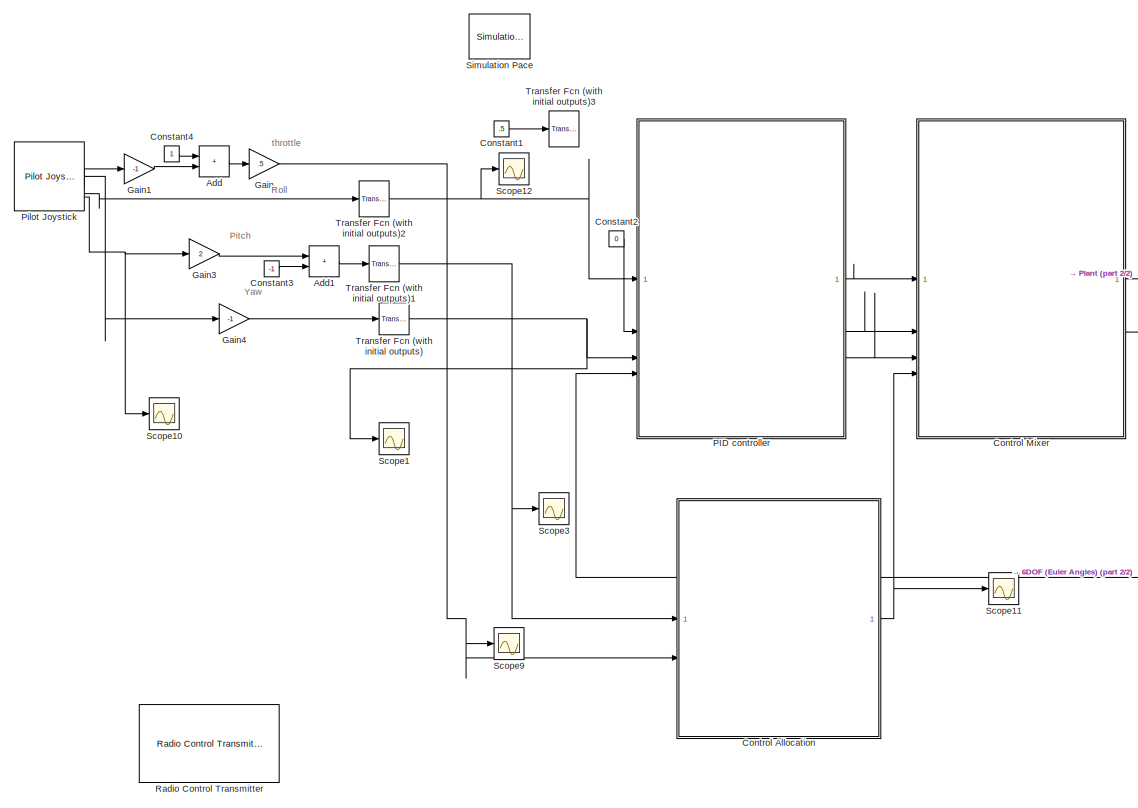
[diagram: root canvas - part 1/2, left side, full height]
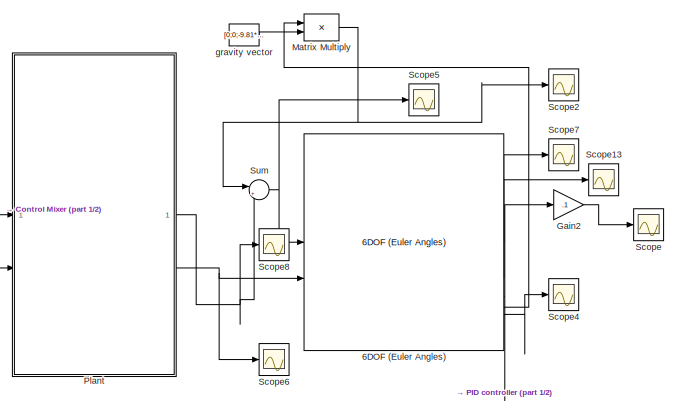
[diagram: root canvas - part 2/2, middle right region]
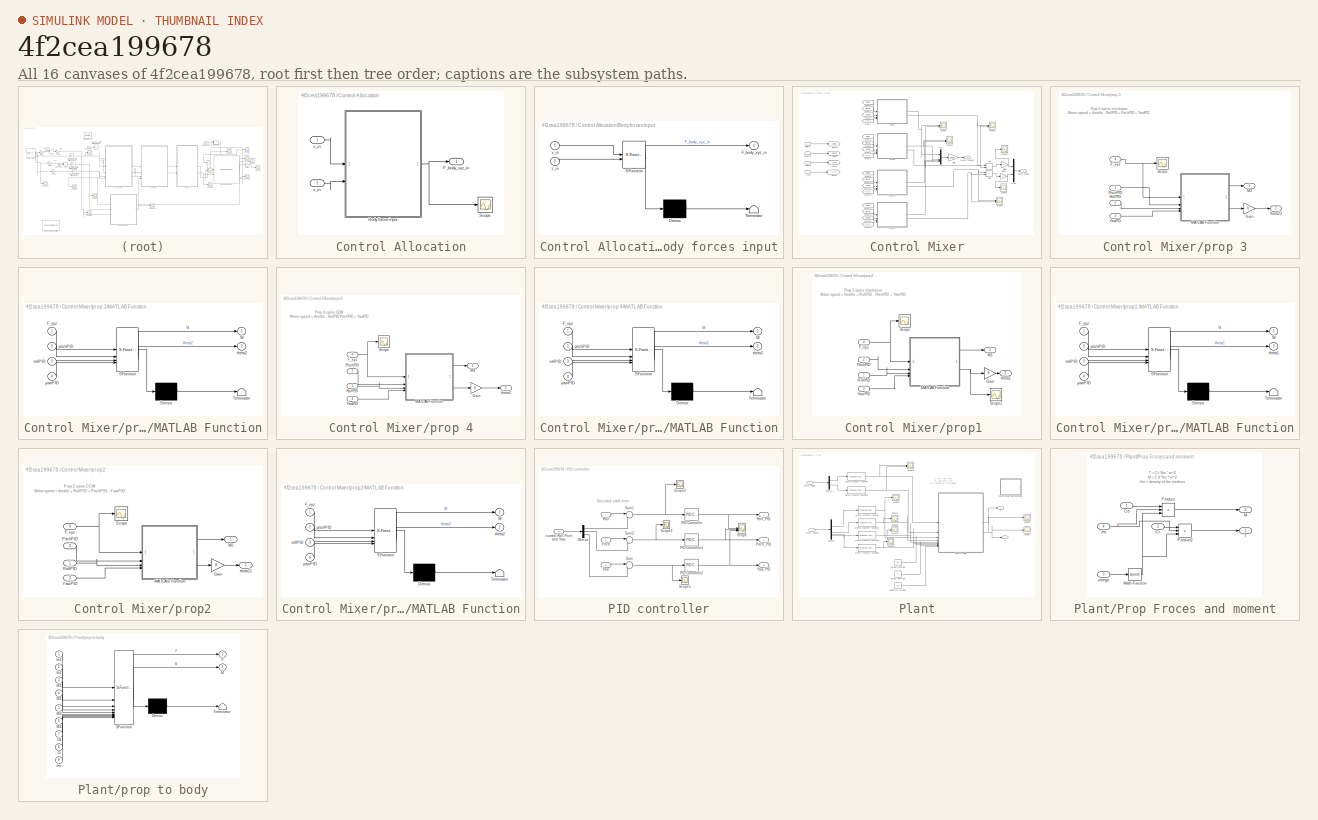
[diagram: thumbnail index - all 16 canvases of the model, root first then tree order]
MODEL slx_4f2cea199678
KIND model
CONFIG AbsTol = auto
CONFIG EnableMultiTasking = off
CONFIG FixedStep = 1/3000
CONFIG MaxStep = auto
CONFIG MinStep = auto
CONFIG RelTol = 1e-3
CONFIG SampleTimeConstraint = Unconstrained
CONFIG SolverName = FixedStepAuto
CONFIG StartTime = 0.0
CONFIG StopTime = 40
WORKSPACE source: mxarray member
WORKSPACE Cd = 1.63886804e-09
WORKSPACE Ct = 6.43091818e-08
WORKSPACE Ixx = 113600
WORKSPACE Iyy = 113600
WORKSPACE Izz = 22620
WORKSPACE Lx = 0.133
WORKSPACE Ly = 0.1575
WORKSPACE Lz = 0.0132
WORKSPACE h = 0.05
WORKSPACE rho = 1.225
BLOCK [Reference] 6DOF (Euler Angles)  REF=shared6dof/6DOF (Euler Angles)
  LibrarySourceBlock = aerolib6dof2/6DOF (Euler Angles)
  SourceBlock = shared6dof/6DOF (Euler Angles)
  SourceType = 6DOF EoM (Body Axis)
BLOCK [Sum] Add
  IconShape = rectangular
BLOCK [Sum] Add1
  IconShape = rectangular
BLOCK [Constant] Constant1
  Value = .5
BLOCK [Constant] Constant2
  Value = 0
BLOCK [Constant] Constant3
  Value = -1
BLOCK [Constant] Constant4
BLOCK [SubSystem] Control Allocation
BLOCK [SubSystem] Control Allocation/Body forces input
  ErrorFcn = Stateflow.Translate.translate
  LibrarySourceBlock = simulink/User-Defined\nFunctions/MATLAB Function
  PermitHierarchicalResolution = ExplicitOnly
  SFBlockType = MATLAB Function
  TreatAsAtomicUnit = on
BLOCK [Demux] Control Allocation/Body forces input/ Demux 
  Outputs = 1
BLOCK [S-Function] Control Allocation/Body forces input/ SFunction 
  EnableBusSupport = on
  FunctionName = sf_sfun
  PortCounts = [2 2]
  SFcnIsStateOwnerBlock = off
  SFunctionDeploymentMode = off
  Tag = Stateflow S-Function 2
BLOCK [Terminator] Control Allocation/Body forces input/ Terminator 
BLOCK [Outport] Control Allocation/Body forces input/F_body_xyz_in
BLOCK [Inport] Control Allocation/Body forces input/x_in
BLOCK [Inport] Control Allocation/Body forces input/z_in
  Port = 2
BLOCK [Outport] Control Allocation/F_body_xyz_in
BLOCK [Scope] Control Allocation/Scope
  Floating = off
  NumInputPorts = 1
  ScopeSpecificationString = Simulink.scopes.TimeScopeBlockCfg('CurrentConfiguration', extmgr.ConfigurationSet(extmgr.Configuration('Core','General UI',true),extmgr.Configuration('Core','Source UI',true),extmgr.Configuration('Sources','WiredSimulink',true,'DataLoggingVariableName','ScopeData7'),extmgr.Configuration('Visuals','Time Domain',true,'SerializedDisplays',{struct('MinYLimReal','-0.06543','MaxYLimReal','0.58886','YLab...<+1606ch>
BLOCK [Inport] Control Allocation/x_in
BLOCK [Inport] Control Allocation/z_in
  Port = 2
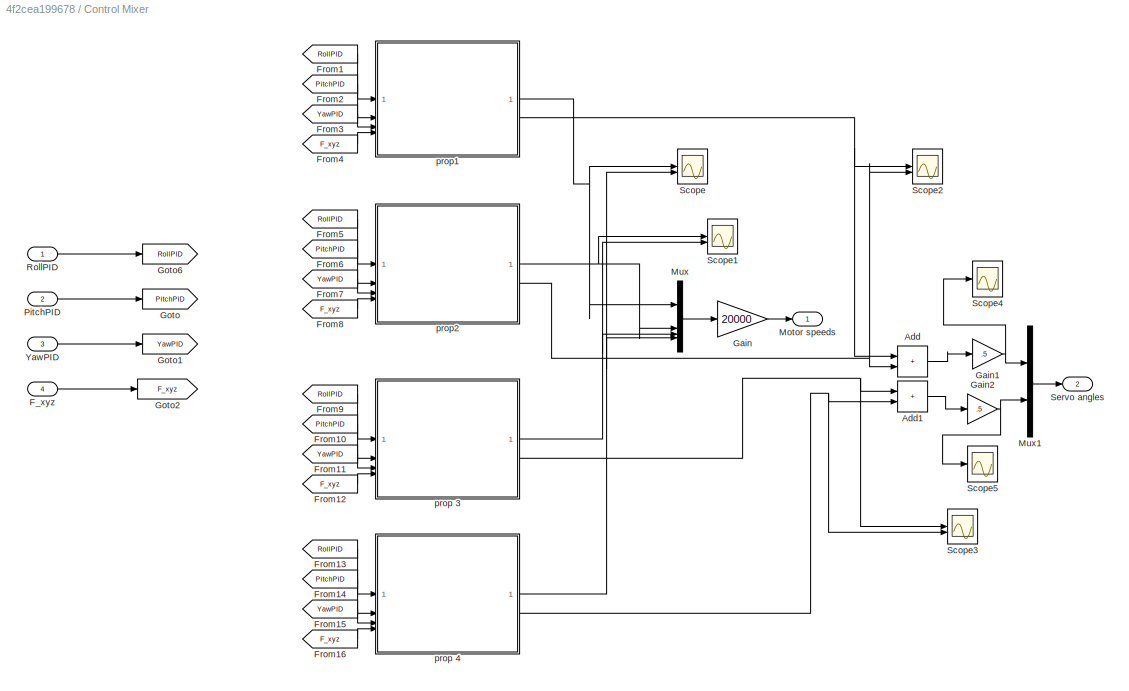
BLOCK [SubSystem] Control Mixer
BLOCK [Sum] Control Mixer/Add
  IconShape = rectangular
BLOCK [Sum] Control Mixer/Add1
  IconShape = rectangular
BLOCK [Inport] Control Mixer/F_xyz
  Port = 4
BLOCK [From] Control Mixer/From1
  GotoTag = RollPID
BLOCK [From] Control Mixer/From10
  GotoTag = PitchPID
BLOCK [From] Control Mixer/From11
  GotoTag = YawPID
BLOCK [From] Control Mixer/From12
  GotoTag = F_xyz
BLOCK [From] Control Mixer/From13
  GotoTag = RollPID
BLOCK [From] Control Mixer/From14
  GotoTag = PitchPID
BLOCK [From] Control Mixer/From15
  GotoTag = YawPID
BLOCK [From] Control Mixer/From16
  GotoTag = F_xyz
BLOCK [From] Control Mixer/From2
  GotoTag = PitchPID
BLOCK [From] Control Mixer/From3
  GotoTag = YawPID
BLOCK [From] Control Mixer/From4
  GotoTag = F_xyz
BLOCK [From] Control Mixer/From5
  GotoTag = RollPID
BLOCK [From] Control Mixer/From6
  GotoTag = PitchPID
BLOCK [From] Control Mixer/From7
  GotoTag = YawPID
BLOCK [From] Control Mixer/From8
  GotoTag = F_xyz
BLOCK [From] Control Mixer/From9
  GotoTag = RollPID
BLOCK [Gain] Control Mixer/Gain
  Gain = 20000
BLOCK [Gain] Control Mixer/Gain1
  Gain = .5
BLOCK [Gain] Control Mixer/Gain2
  Gain = .5
BLOCK [Goto] Control Mixer/Goto
  GotoTag = PitchPID
BLOCK [Goto] Control Mixer/Goto1
  GotoTag = YawPID
BLOCK [Goto] Control Mixer/Goto2
  GotoTag = F_xyz
BLOCK [Goto] Control Mixer/Goto6
  GotoTag = RollPID
BLOCK [Outport] Control Mixer/Motor speeds
BLOCK [Mux] Control Mixer/Mux
  DisplayOption = bar
BLOCK [Mux] Control Mixer/Mux1
  DisplayOption = bar
  Inputs = 2
BLOCK [Inport] Control Mixer/PitchPID
  Port = 2
BLOCK [Inport] Control Mixer/RollPID
BLOCK [Scope] Control Mixer/Scope
  Floating = off
  NumInputPorts = 2
  ScopeSpecificationString = Simulink.scopes.TimeScopeBlockCfg('CurrentConfiguration', extmgr.ConfigurationSet(extmgr.Configuration('Core','General UI',true),extmgr.Configuration('Core','Source UI',true),extmgr.Configuration('Sources','WiredSimulink',true,'DataLoggingVariableName','ScopeData2'),extmgr.Configuration('Visuals','Time Domain',true,'SerializedDisplays',{struct('MinYLimReal','0.37866','MaxYLimReal','1.23717','YLabe...<+1505ch>
BLOCK [Scope] Control Mixer/Scope1
  Floating = off
  NumInputPorts = 2
  ScopeSpecificationString = Simulink.scopes.TimeScopeBlockCfg('CurrentConfiguration', extmgr.ConfigurationSet(extmgr.Configuration('Core','General UI',true),extmgr.Configuration('Core','Source UI',true),extmgr.Configuration('Sources','WiredSimulink',true,'DataLoggingVariableName','ScopeData3'),extmgr.Configuration('Visuals','Time Domain',true,'SerializedDisplays',{struct('MinYLimReal','-26.05432','MaxYLimReal','235.23226','Y...<+1505ch>
BLOCK [Scope] Control Mixer/Scope2
  Floating = off
  NumInputPorts = 2
  ScopeSpecificationString = Simulink.scopes.TimeScopeBlockCfg('CurrentConfiguration', extmgr.ConfigurationSet(extmgr.Configuration('Core','General UI',true),extmgr.Configuration('Core','Source UI',true),extmgr.Configuration('Sources','WiredSimulink',true,'DataLoggingVariableName','ScopeData2'),extmgr.Configuration('Visuals','Time Domain',true,'SerializedDisplays',{struct('MinYLimReal','-0.76353','MaxYLimReal','6.87174','YLab...<+1551ch>
BLOCK [Scope] Control Mixer/Scope3
  Floating = off
  NumInputPorts = 2
  ScopeSpecificationString = Simulink.scopes.TimeScopeBlockCfg('CurrentConfiguration', extmgr.ConfigurationSet(extmgr.Configuration('Core','General UI',true),extmgr.Configuration('Core','Source UI',true),extmgr.Configuration('Sources','WiredSimulink',true,'DataLoggingVariableName','ScopeData3'),extmgr.Configuration('Visuals','Time Domain',true,'SerializedDisplays',{struct('MinYLimReal','-0.76355','MaxYLimReal','6.87198','YLab...<+1496ch>
BLOCK [Scope] Control Mixer/Scope4
  Floating = off
  NumInputPorts = 1
  ScopeSpecificationString = Simulink.scopes.TimeScopeBlockCfg('CurrentConfiguration', extmgr.ConfigurationSet(extmgr.Configuration('Core','General UI',true),extmgr.Configuration('Core','Source UI',true),extmgr.Configuration('Sources','WiredSimulink',true,'DataLoggingVariableName','ScopeData9'),extmgr.Configuration('Visuals','Time Domain',true,'SerializedDisplays',{struct('MinYLimReal','-0.76353','MaxYLimReal','6.87174','YLab...<+1495ch>
BLOCK [Scope] Control Mixer/Scope5
  Floating = off
  NumInputPorts = 1
  ScopeSpecificationString = Simulink.scopes.TimeScopeBlockCfg('CurrentConfiguration', extmgr.ConfigurationSet(extmgr.Configuration('Core','General UI',true),extmgr.Configuration('Core','Source UI',true),extmgr.Configuration('Sources','WiredSimulink',true,'DataLoggingVariableName','ScopeData10'),extmgr.Configuration('Visuals','Time Domain',true,'SerializedDisplays',{struct('MinYLimReal','-0.76353','MaxYLimReal','6.87174','YLa...<+1522ch>
BLOCK [Outport] Control Mixer/Servo angles
  Port = 2
BLOCK [Inport] Control Mixer/YawPID
  Port = 3
BLOCK [SubSystem] Control Mixer/prop 3
BLOCK [Inport] Control Mixer/prop 3/F_xyz
  Port = 4
BLOCK [Gain] Control Mixer/prop 3/Gain
BLOCK [Outport] Control Mixer/prop 3/M3
BLOCK [SubSystem] Control Mixer/prop 3/MATLAB Function
  ErrorFcn = Stateflow.Translate.translate
  PermitHierarchicalResolution = ExplicitOnly
  SFBlockType = MATLAB Function
  TreatAsAtomicUnit = on
BLOCK [Demux] Control Mixer/prop 3/MATLAB Function/ Demux 
  Outputs = 1
BLOCK [S-Function] Control Mixer/prop 3/MATLAB Function/ SFunction 
  EnableBusSupport = on
  FunctionName = sf_sfun
  PortCounts = [4 3]
  SFcnIsStateOwnerBlock = off
  SFunctionDeploymentMode = off
  Tag = Stateflow S-Function 6
BLOCK [Terminator] Control Mixer/prop 3/MATLAB Function/ Terminator 
BLOCK [Inport] Control Mixer/prop 3/MATLAB Function/F_xyz
BLOCK [Outport] Control Mixer/prop 3/MATLAB Function/M
BLOCK [Inport] Control Mixer/prop 3/MATLAB Function/pitchPID
  Port = 2
BLOCK [Inport] Control Mixer/prop 3/MATLAB Function/rollPID
  Port = 3
BLOCK [Outport] Control Mixer/prop 3/MATLAB Function/theta2
  Port = 2
BLOCK [Inport] Control Mixer/prop 3/MATLAB Function/yawPID
  Port = 4
BLOCK [Inport] Control Mixer/prop 3/PitchPID
  Port = 2
BLOCK [Inport] Control Mixer/prop 3/RollPID
BLOCK [Scope] Control Mixer/prop 3/Scope
  Floating = off
  NumInputPorts = 1
  ScopeSpecificationString = Simulink.scopes.TimeScopeBlockCfg('CurrentConfiguration', extmgr.ConfigurationSet(extmgr.Configuration('Core','General UI',true),extmgr.Configuration('Core','Source UI',true),extmgr.Configuration('Sources','WiredSimulink',true,'DataLoggingVariableName','ScopeData2'),extmgr.Configuration('Visuals','Time Domain',true,'SerializedDisplays',{struct('MinYLimReal','9000.00000','MaxYLimReal','11000.00000'...<+1428ch>
BLOCK [Inport] Control Mixer/prop 3/YawPID
  Port = 3
BLOCK [Outport] Control Mixer/prop 3/theta22
  Port = 2
BLOCK [SubSystem] Control Mixer/prop 4
BLOCK [Inport] Control Mixer/prop 4/F_xyz
  Port = 4
BLOCK [Gain] Control Mixer/prop 4/Gain
BLOCK [Outport] Control Mixer/prop 4/M4
BLOCK [SubSystem] Control Mixer/prop 4/MATLAB Function
  ErrorFcn = Stateflow.Translate.translate
  PermitHierarchicalResolution = ExplicitOnly
  SFBlockType = MATLAB Function
  TreatAsAtomicUnit = on
BLOCK [Demux] Control Mixer/prop 4/MATLAB Function/ Demux 
  Outputs = 1
BLOCK [S-Function] Control Mixer/prop 4/MATLAB Function/ SFunction 
  EnableBusSupport = on
  FunctionName = sf_sfun
  PortCounts = [4 3]
  SFcnIsStateOwnerBlock = off
  SFunctionDeploymentMode = off
  Tag = Stateflow S-Function 4
BLOCK [Terminator] Control Mixer/prop 4/MATLAB Function/ Terminator 
BLOCK [Inport] Control Mixer/prop 4/MATLAB Function/F_xyz
BLOCK [Outport] Control Mixer/prop 4/MATLAB Function/M
BLOCK [Inport] Control Mixer/prop 4/MATLAB Function/pitchPID
  Port = 2
BLOCK [Inport] Control Mixer/prop 4/MATLAB Function/rollPID
  Port = 3
BLOCK [Outport] Control Mixer/prop 4/MATLAB Function/theta2
  Port = 2
BLOCK [Inport] Control Mixer/prop 4/MATLAB Function/yawPID
  Port = 4
BLOCK [Inport] Control Mixer/prop 4/PitchPID
  Port = 2
BLOCK [Inport] Control Mixer/prop 4/RollPID
BLOCK [Scope] Control Mixer/prop 4/Scope
  Floating = off
  NumInputPorts = 1
  ScopeSpecificationString = Simulink.scopes.TimeScopeBlockCfg('CurrentConfiguration', extmgr.ConfigurationSet(extmgr.Configuration('Core','General UI',true),extmgr.Configuration('Core','Source UI',true),extmgr.Configuration('Sources','WiredSimulink',true,'DataLoggingVariableName','ScopeData3'),extmgr.Configuration('Visuals','Time Domain',true,'SerializedDisplays',{struct('MinYLimReal','-0.06543','MaxYLimReal','0.58886','YLab...<+1510ch>
BLOCK [Inport] Control Mixer/prop 4/YawPID
  Port = 3
BLOCK [Outport] Control Mixer/prop 4/theta2
  Port = 2
BLOCK [SubSystem] Control Mixer/prop1 
BLOCK [Inport] Control Mixer/prop1 /F_xyz
  Port = 4
BLOCK [Gain] Control Mixer/prop1 /Gain
BLOCK [Outport] Control Mixer/prop1 /M1
BLOCK [SubSystem] Control Mixer/prop1 /MATLAB Function
  ErrorFcn = Stateflow.Translate.translate
  PermitHierarchicalResolution = ExplicitOnly
  SFBlockType = MATLAB Function
  TreatAsAtomicUnit = on
BLOCK [Demux] Control Mixer/prop1 /MATLAB Function/ Demux 
  Outputs = 1
BLOCK [S-Function] Control Mixer/prop1 /MATLAB Function/ SFunction 
  EnableBusSupport = on
  FunctionName = sf_sfun
  PortCounts = [4 3]
  SFcnIsStateOwnerBlock = off
  SFunctionDeploymentMode = off
  Tag = Stateflow S-Function 3
BLOCK [Terminator] Control Mixer/prop1 /MATLAB Function/ Terminator 
BLOCK [Inport] Control Mixer/prop1 /MATLAB Function/F_xyz
BLOCK [Outport] Control Mixer/prop1 /MATLAB Function/M
BLOCK [Inport] Control Mixer/prop1 /MATLAB Function/pitchPID
  Port = 2
BLOCK [Inport] Control Mixer/prop1 /MATLAB Function/rollPID
  Port = 3
BLOCK [Outport] Control Mixer/prop1 /MATLAB Function/theta1
  Port = 2
BLOCK [Inport] Control Mixer/prop1 /MATLAB Function/yawPID
  Port = 4
BLOCK [Inport] Control Mixer/prop1 /PitchPID
  Port = 2
BLOCK [Inport] Control Mixer/prop1 /RollPID
BLOCK [Scope] Control Mixer/prop1 /Scope
  Floating = off
  NumInputPorts = 1
  ScopeSpecificationString = Simulink.scopes.TimeScopeBlockCfg('CurrentConfiguration', extmgr.ConfigurationSet(extmgr.Configuration('Core','General UI',true),extmgr.Configuration('Core','Source UI',true),extmgr.Configuration('Sources','WiredSimulink',true,'DataLoggingVariableName','ScopeData8'),extmgr.Configuration('Visuals','Time Domain',true,'SerializedDisplays',{struct('MinYLimReal','-0.06543','MaxYLimReal','0.58886','YLab...<+1680ch>
BLOCK [Scope] Control Mixer/prop1 /Scope1
  Floating = off
  NumInputPorts = 1
  ScopeSpecificationString = Simulink.scopes.TimeScopeBlockCfg('CurrentConfiguration', extmgr.ConfigurationSet(extmgr.Configuration('Core','General UI',true),extmgr.Configuration('Core','Source UI',true),extmgr.Configuration('Sources','WiredSimulink',true,'DataLoggingVariableName','ScopeData14'),extmgr.Configuration('Visuals','Time Domain',true,'SerializedDisplays',{struct('MinYLimReal','-0.7635','MaxYLimReal','6.87154','YLab...<+1496ch>
BLOCK [Inport] Control Mixer/prop1 /YawPID
  Port = 3
BLOCK [Outport] Control Mixer/prop1 /theta1
  Port = 2
BLOCK [SubSystem] Control Mixer/prop2
BLOCK [Inport] Control Mixer/prop2/F_xyz
  Port = 4
BLOCK [Gain] Control Mixer/prop2/Gain
BLOCK [Outport] Control Mixer/prop2/M2
BLOCK [SubSystem] Control Mixer/prop2/MATLAB Function
  ErrorFcn = Stateflow.Translate.translate
  PermitHierarchicalResolution = ExplicitOnly
  SFBlockType = MATLAB Function
  TreatAsAtomicUnit = on
BLOCK [Demux] Control Mixer/prop2/MATLAB Function/ Demux 
  Outputs = 1
BLOCK [S-Function] Control Mixer/prop2/MATLAB Function/ SFunction 
  EnableBusSupport = on
  FunctionName = sf_sfun
  PortCounts = [4 3]
  SFcnIsStateOwnerBlock = off
  SFunctionDeploymentMode = off
  Tag = Stateflow S-Function 5
BLOCK [Terminator] Control Mixer/prop2/MATLAB Function/ Terminator 
BLOCK [Inport] Control Mixer/prop2/MATLAB Function/F_xyz
BLOCK [Outport] Control Mixer/prop2/MATLAB Function/M
BLOCK [Inport] Control Mixer/prop2/MATLAB Function/pitchPID
  Port = 2
BLOCK [Inport] Control Mixer/prop2/MATLAB Function/rollPID
  Port = 3
BLOCK [Outport] Control Mixer/prop2/MATLAB Function/theta2
  Port = 2
BLOCK [Inport] Control Mixer/prop2/MATLAB Function/yawPID
  Port = 4
BLOCK [Inport] Control Mixer/prop2/PitchPID
  Port = 2
BLOCK [Inport] Control Mixer/prop2/RollPID
BLOCK [Scope] Control Mixer/prop2/Scope
  Floating = off
  NumInputPorts = 1
  ScopeSpecificationString = Simulink.scopes.TimeScopeBlockCfg('CurrentConfiguration', extmgr.ConfigurationSet(extmgr.Configuration('Core','General UI',true),extmgr.Configuration('Core','Source UI',true),extmgr.Configuration('Sources','WiredSimulink',true,'DataLoggingVariableName','ScopeData1'),extmgr.Configuration('Visuals','Time Domain',true,'SerializedDisplays',{struct('MinYLimReal','9000.00000','MaxYLimReal','11000.00000'...<+1428ch>
BLOCK [Inport] Control Mixer/prop2/YawPID
  Port = 3
BLOCK [Outport] Control Mixer/prop2/theta11
  Port = 2
BLOCK [Gain] Gain
  Gain = .5
BLOCK [Gain] Gain1
  Gain = -1
BLOCK [Gain] Gain2
  Gain = .1
BLOCK [Gain] Gain3
  Gain = 2
BLOCK [Gain] Gain4
  Gain = -1
BLOCK [Product] Matrix Multiply
  Multiplication = Matrix(*)
BLOCK [SubSystem] PID controller
BLOCK [Demux] PID controller/Demux
  Outputs = 3
BLOCK [Reference] PID controller/PID Controller  REF=slpidlib/PID Controller
  LibrarySourceBlock = simulink/Continuous/PID Controller
  SourceBlock = slpidlib/PID Controller
  SourceType = PID 1dof
BLOCK [Reference] PID controller/PID Controller1  REF=slpidlib/PID Controller
  LibrarySourceBlock = simulink/Continuous/PID Controller
  SourceBlock = slpidlib/PID Controller
  SourceType = PID 1dof
BLOCK [Reference] PID controller/PID Controller2  REF=slpidlib/PID Controller
  LibrarySourceBlock = simulink/Continuous/PID Controller
  SourceBlock = slpidlib/PID Controller
  SourceType = PID 1dof
BLOCK [Inport] PID controller/Pitch
  Port = 2
BLOCK [Outport] PID controller/Pitch_PID
  Port = 2
BLOCK [Inport] PID controller/Roll
BLOCK [Outport] PID controller/Roll_PID
BLOCK [Scope] PID controller/Scope
  Floating = off
  NumInputPorts = 3
  ScopeSpecificationString = Simulink.scopes.TimeScopeBlockCfg('CurrentConfiguration', extmgr.ConfigurationSet(extmgr.Configuration('Core','General UI',true),extmgr.Configuration('Core','Source UI',true),extmgr.Configuration('Sources','WiredSimulink',true,'DataLoggingVariableName','ScopeData1'),extmgr.Configuration('Visuals','Time Domain',true,'SerializedDisplays',{struct('MinYLimReal','-0.10895','MaxYLimReal','0.12279','YLab...<+1608ch>
BLOCK [Scope] PID controller/Scope1
  Floating = off
  NumInputPorts = 1
  ScopeSpecificationString = Simulink.scopes.TimeScopeBlockCfg('CurrentConfiguration', extmgr.ConfigurationSet(extmgr.Configuration('Core','General UI',true),extmgr.Configuration('Core','Source UI',true),extmgr.Configuration('Sources','WiredSimulink',true,'DataLoggingVariableName','ScopeData1'),extmgr.Configuration('Visuals','Time Domain',true,'SerializedDisplays',{struct('MinYLimReal','-0.000000000000000019','MaxYLimReal','0...<+1573ch>
BLOCK [Scope] PID controller/Scope2
  Floating = off
  NumInputPorts = 1
  ScopeSpecificationString = Simulink.scopes.TimeScopeBlockCfg('CurrentConfiguration', extmgr.ConfigurationSet(extmgr.Configuration('Core','General UI',true),extmgr.Configuration('Core','Source UI',true),extmgr.Configuration('Sources','WiredSimulink',true,'DataLoggingVariableName','ScopeData6'),extmgr.Configuration('Visuals','Time Domain',true,'SerializedDisplays',{struct('MinYLimReal','-3.87939','MaxYLimReal','5.02853','YLab...<+1547ch>
BLOCK [Scope] PID controller/Scope3
  Floating = off
  NumInputPorts = 1
  ScopeSpecificationString = Simulink.scopes.TimeScopeBlockCfg('CurrentConfiguration', extmgr.ConfigurationSet(extmgr.Configuration('Core','General UI',true),extmgr.Configuration('Core','Source UI',true),extmgr.Configuration('Sources','WiredSimulink',true,'DataLoggingVariableName','ScopeData7'),extmgr.Configuration('Visuals','Time Domain',true,'SerializedDisplays',{struct('MinYLimReal','-0.76478','MaxYLimReal','0.69177','YLab...<+1547ch>
BLOCK [Sum] PID controller/Sum
  Inputs = |+-
BLOCK [Sum] PID controller/Sum1
  Inputs = |+-
BLOCK [Sum] PID controller/Sum2
  Inputs = |+-
BLOCK [Inport] PID controller/Yaw
  Port = 3
BLOCK [Outport] PID controller/Yaw_PID
  Port = 3
BLOCK [Inport] PID controller/current Roll Pitch and Yaw
  Port = 4
BLOCK [Reference] Pilot Joystick  REF=aerolibanimutils/Pilot Joystick
  SourceBlock = aerolibanimutils/Pilot Joystick
  SourceType = PilotJoystick
BLOCK [SubSystem] Plant
BLOCK [Demux] Plant/Demux
BLOCK [Demux] Plant/Demux1
  Outputs = 2
BLOCK [Constant] Plant/Density of medium
  Value = rho
BLOCK [Outport] Plant/F
BLOCK [Outport] Plant/M
  Port = 2
BLOCK [Reference] Plant/Motor Transfer function  REF=simulink_extras/Additional
Linear/Transfer Fcn
(with initial states)
  SourceBlock = simulink_extras/Additional\nLinear/Transfer Fcn\n(with initial states)
  SourceType = Transfer Function with Initial States
BLOCK [Reference] Plant/Motor Transfer function1  REF=simulink_extras/Additional
Linear/Transfer Fcn
(with initial states)
  SourceBlock = simulink_extras/Additional\nLinear/Transfer Fcn\n(with initial states)
  SourceType = Transfer Function with Initial States
BLOCK [Reference] Plant/Motor Transfer function2  REF=simulink_extras/Additional
Linear/Transfer Fcn
(with initial states)
  SourceBlock = simulink_extras/Additional\nLinear/Transfer Fcn\n(with initial states)
  SourceType = Transfer Function with Initial States
BLOCK [Reference] Plant/Motor Transfer function3  REF=simulink_extras/Additional
Linear/Transfer Fcn
(with initial states)
  SourceBlock = simulink_extras/Additional\nLinear/Transfer Fcn\n(with initial states)
  SourceType = Transfer Function with Initial States
BLOCK [Inport] Plant/Motor speeds
BLOCK [SubSystem] Plant/Prop Froces and moment
  Commented = on
BLOCK [Inport] Plant/Prop Froces and moment/Cd
BLOCK [Inport] Plant/Prop Froces and moment/Ct
  Port = 2
BLOCK [Outport] Plant/Prop Froces and moment/M
  Port = 2
BLOCK [Math] Plant/Prop Froces and moment/Math Function
  Operator = square
BLOCK [Product] Plant/Prop Froces and moment/Product
  Inputs = 3
BLOCK [Product] Plant/Prop Froces and moment/Product2
  Inputs = 3
BLOCK [Outport] Plant/Prop Froces and moment/T
BLOCK [Inport] Plant/Prop Froces and moment/omega
  Port = 3
BLOCK [Inport] Plant/Prop Froces and moment/rho
  Port = 4
BLOCK [Scope] Plant/Scope
  Floating = off
  NumInputPorts = 1
  ScopeSpecificationString = Simulink.scopes.TimeScopeBlockCfg('CurrentConfiguration', extmgr.ConfigurationSet(extmgr.Configuration('Core','General UI',true),extmgr.Configuration('Core','Source UI',true),extmgr.Configuration('Sources','WiredSimulink',true,'DataLoggingVariableName','ScopeData4'),extmgr.Configuration('Visuals','Time Domain',true,'SerializedDisplays',{struct('MinYLimReal','-516.35727','MaxYLimReal','293.46209','...<+1543ch>
BLOCK [Scope] Plant/Scope1
  Floating = off
  NumInputPorts = 1
  ScopeSpecificationString = Simulink.scopes.TimeScopeBlockCfg('CurrentConfiguration', extmgr.ConfigurationSet(extmgr.Configuration('Core','General UI',true),extmgr.Configuration('Core','Source UI',true),extmgr.Configuration('Sources','WiredSimulink',true,'DataLoggingVariableName','ScopeData5'),extmgr.Configuration('Visuals','Time Domain',true,'SerializedDisplays',{struct('MinYLimReal','-13.3021','MaxYLimReal','119.71892','YL...<+1510ch>
BLOCK [Scope] Plant/Scope2
  Floating = off
  NumInputPorts = 1
  ScopeSpecificationString = Simulink.scopes.TimeScopeBlockCfg('CurrentConfiguration', extmgr.ConfigurationSet(extmgr.Configuration('Core','General UI',true),extmgr.Configuration('Core','Source UI',true),extmgr.Configuration('Sources','WiredSimulink',true,'DataLoggingVariableName','ScopeData6'),extmgr.Configuration('Visuals','Time Domain',true,'SerializedDisplays',{struct('MinYLimReal','-157906.10246','MaxYLimReal','1421154.9...<+1540ch>
BLOCK [Scope] Plant/Scope3
  Floating = off
  NumInputPorts = 2
  ScopeSpecificationString = Simulink.scopes.TimeScopeBlockCfg('CurrentConfiguration', extmgr.ConfigurationSet(extmgr.Configuration('Core','General UI',true),extmgr.Configuration('Core','Source UI',true),extmgr.Configuration('Sources','WiredSimulink',true,'DataLoggingVariableName','ScopeData1'),extmgr.Configuration('Visuals','Time Domain',true,'SerializedDisplays',{struct('MinYLimReal','-0.43873','MaxYLimReal','3.94858','YLab...<+1525ch>
BLOCK [Scope] Plant/Scope4
  Floating = off
  NumInputPorts = 1
  ScopeSpecificationString = Simulink.scopes.TimeScopeBlockCfg('CurrentConfiguration', extmgr.ConfigurationSet(extmgr.Configuration('Core','General UI',true),extmgr.Configuration('Core','Source UI',true),extmgr.Configuration('Sources','WiredSimulink',true,'DataLoggingVariableName','ScopeData11'),extmgr.Configuration('Visuals','Time Domain',true,'SerializedDisplays',{struct('MinYLimReal','-156451.85455','MaxYLimReal','1408066....<+1542ch>
BLOCK [Scope] Plant/Scope5
  Floating = off
  NumInputPorts = 1
  ScopeSpecificationString = Simulink.scopes.TimeScopeBlockCfg('CurrentConfiguration', extmgr.ConfigurationSet(extmgr.Configuration('Core','General UI',true),extmgr.Configuration('Core','Source UI',true),extmgr.Configuration('Sources','WiredSimulink',true,'DataLoggingVariableName','ScopeData12'),extmgr.Configuration('Visuals','Time Domain',true,'SerializedDisplays',{struct('MinYLimReal','-157567.02067','MaxYLimReal','1418103....<+1542ch>
BLOCK [Scope] Plant/Scope6
  Floating = off
  NumInputPorts = 1
  ScopeSpecificationString = Simulink.scopes.TimeScopeBlockCfg('CurrentConfiguration', extmgr.ConfigurationSet(extmgr.Configuration('Core','General UI',true),extmgr.Configuration('Core','Source UI',true),extmgr.Configuration('Sources','WiredSimulink',true,'DataLoggingVariableName','ScopeData13'),extmgr.Configuration('Visuals','Time Domain',true,'SerializedDisplays',{struct('MinYLimReal','-156223.62873','MaxYLimReal','1406012....<+1538ch>
BLOCK [Inport] Plant/Servo angles
  Port = 2
BLOCK [Reference] Plant/Servo transfer function  REF=simulink_extras/Additional
Linear/Transfer Fcn
(with initial states)
  SourceBlock = simulink_extras/Additional\nLinear/Transfer Fcn\n(with initial states)
  SourceType = Transfer Function with Initial States
BLOCK [Reference] Plant/Servo transfer function1  REF=simulink_extras/Additional
Linear/Transfer Fcn
(with initial states)
  SourceBlock = simulink_extras/Additional\nLinear/Transfer Fcn\n(with initial states)
  SourceType = Transfer Function with Initial States
BLOCK [Constant] Plant/Thrust constant
  Value = Ct
BLOCK [Constant] Plant/Torque constant
  Value = Cd
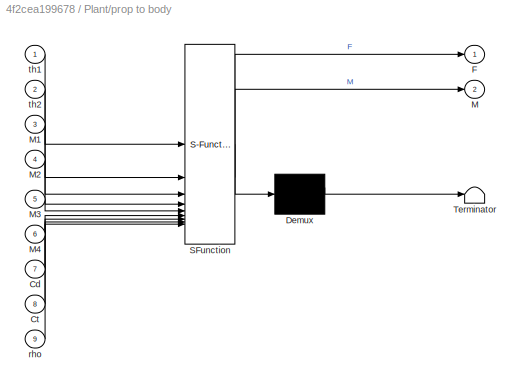
BLOCK [SubSystem] Plant/prop to body
  ErrorFcn = Stateflow.Translate.translate
  LibrarySourceBlock = simulink/User-Defined\nFunctions/MATLAB Function
  PermitHierarchicalResolution = ExplicitOnly
  SFBlockType = MATLAB Function
  TreatAsAtomicUnit = on
BLOCK [Demux] Plant/prop to body/ Demux 
  Outputs = 1
BLOCK [S-Function] Plant/prop to body/ SFunction 
  EnableBusSupport = on
  FunctionName = sf_sfun
  PortCounts = [9 3]
  SFcnIsStateOwnerBlock = off
  SFunctionDeploymentMode = off
  Tag = Stateflow S-Function 1
BLOCK [Terminator] Plant/prop to body/ Terminator 
BLOCK [Inport] Plant/prop to body/Cd
  Port = 7
BLOCK [Inport] Plant/prop to body/Ct
  Port = 8
BLOCK [Outport] Plant/prop to body/F
BLOCK [Outport] Plant/prop to body/M
  Port = 2
BLOCK [Inport] Plant/prop to body/M1
  Port = 3
BLOCK [Inport] Plant/prop to body/M2
  Port = 4
BLOCK [Inport] Plant/prop to body/M3
  Port = 5
BLOCK [Inport] Plant/prop to body/M4
  Port = 6
BLOCK [Inport] Plant/prop to body/rho
  Port = 9
BLOCK [Inport] Plant/prop to body/th1
BLOCK [Inport] Plant/prop to body/th2
  Port = 2
BLOCK [Reference] Radio Control Transmitter  REF=px4Sensorslib/Radio Control Transmitter
  Commented = on
  SourceBlock = px4Sensorslib/Radio Control Transmitter
  SourceType = PX4 Radio Control Transmitter
BLOCK [Scope] Scope
  Floating = off
  NumInputPorts = 1
  ScopeSpecificationString = Simulink.scopes.TimeScopeBlockCfg('CurrentConfiguration', extmgr.ConfigurationSet(extmgr.Configuration('Core','General UI',true),extmgr.Configuration('Core','Source UI',true),extmgr.Configuration('Sources','WiredSimulink',true,'DataLoggingVariableName','ScopeData5'),extmgr.Configuration('Visuals','Time Domain',true,'SerializedDisplays',{struct('MinYLimReal','-0.32908','MaxYLimReal','0.35557','YLab...<+1633ch>
BLOCK [Scope] Scope1
  Floating = off
  NumInputPorts = 1
  ScopeSpecificationString = Simulink.scopes.TimeScopeBlockCfg('CurrentConfiguration', extmgr.ConfigurationSet(extmgr.Configuration('Core','General UI',true),extmgr.Configuration('Core','Source UI',true),extmgr.Configuration('Sources','WiredSimulink',true,'DataLoggingVariableName','ScopeData7'),extmgr.Configuration('Visuals','Time Domain',true,'SerializedDisplays',{struct('MinYLimReal','-1.00000','MaxYLimReal','1.00000','YLab...<+1483ch>
BLOCK [Scope] Scope10
  Floating = off
  NumInputPorts = 1
  ScopeSpecificationString = Simulink.scopes.TimeScopeBlockCfg('CurrentConfiguration', extmgr.ConfigurationSet(extmgr.Configuration('Core','General UI',true),extmgr.Configuration('Core','Source UI',true),extmgr.Configuration('Sources','WiredSimulink',true,'DataLoggingVariableName','ScopeData6'),extmgr.Configuration('Visuals','Time Domain',true,'SerializedDisplays',{struct('MinYLimReal','0.46729','MaxYLimReal','0.79443','YLabe...<+1491ch>
BLOCK [Scope] Scope11
  Floating = off
  NumInputPorts = 1
  ScopeSpecificationString = Simulink.scopes.TimeScopeBlockCfg('CurrentConfiguration', extmgr.ConfigurationSet(extmgr.Configuration('Core','General UI',true),extmgr.Configuration('Core','Source UI',true),extmgr.Configuration('Sources','WiredSimulink',true,'DataLoggingVariableName','ScopeData8'),extmgr.Configuration('Visuals','Time Domain',true,'SerializedDisplays',{struct('MinYLimReal','-0.06543','MaxYLimReal','0.58886','YLab...<+1580ch>
BLOCK [Scope] Scope12
  Floating = off
  NumInputPorts = 1
  ScopeSpecificationString = Simulink.scopes.TimeScopeBlockCfg('CurrentConfiguration', extmgr.ConfigurationSet(extmgr.Configuration('Core','General UI',true),extmgr.Configuration('Core','Source UI',true),extmgr.Configuration('Sources','WiredSimulink',true,'DataLoggingVariableName','ScopeData15'),extmgr.Configuration('Visuals','Time Domain',true,'SerializedDisplays',{struct('MinYLimReal','-0.125','MaxYLimReal','1.125','YLabelR...<+1473ch>
BLOCK [Scope] Scope13
  Floating = off
  NumInputPorts = 1
  ScopeSpecificationString = Simulink.scopes.TimeScopeBlockCfg('CurrentConfiguration', extmgr.ConfigurationSet(extmgr.Configuration('Core','General UI',true),extmgr.Configuration('Core','Source UI',true),extmgr.Configuration('Sources','WiredSimulink',true,'DataLoggingVariableName','ScopeData16'),extmgr.Configuration('Visuals','Time Domain',true,'SerializedDisplays',{struct('MinYLimReal','-471.61545','MaxYLimReal','248.38984',...<+1565ch>
BLOCK [Scope] Scope2
  Floating = off
  NumInputPorts = 1
  ScopeSpecificationString = Simulink.scopes.TimeScopeBlockCfg('CurrentConfiguration', extmgr.ConfigurationSet(extmgr.Configuration('Core','General UI',true),extmgr.Configuration('Core','Source UI',true),extmgr.Configuration('Sources','WiredSimulink',true,'DataLoggingVariableName','ScopeData4'),extmgr.Configuration('Visuals','Time Domain',true,'SerializedDisplays',{struct('MinYLimReal','-32.41081','MaxYLimReal','26.82732','YL...<+1449ch>
BLOCK [Scope] Scope3
  Floating = off
  NumInputPorts = 1
  ScopeSpecificationString = Simulink.scopes.TimeScopeBlockCfg('CurrentConfiguration', extmgr.ConfigurationSet(extmgr.Configuration('Core','General UI',true),extmgr.Configuration('Core','Source UI',true),extmgr.Configuration('Sources','WiredSimulink',true,'DataLoggingVariableName','ScopeData4'),extmgr.Configuration('Visuals','Time Domain',true,'SerializedDisplays',{struct('MinYLimReal','-0.06543','MaxYLimReal','0.58886','YLab...<+1511ch>
BLOCK [Scope] Scope4
  Floating = off
  NumInputPorts = 1
  ScopeSpecificationString = Simulink.scopes.TimeScopeBlockCfg('CurrentConfiguration', extmgr.ConfigurationSet(extmgr.Configuration('Core','General UI',true),extmgr.Configuration('Core','Source UI',true),extmgr.Configuration('Sources','WiredSimulink',true,'DataLoggingVariableName','ScopeData19'),extmgr.Configuration('Visuals','Time Domain',true,'SerializedDisplays',{struct('MinYLimReal','-419.1506','MaxYLimReal','355.21023','...<+1561ch>
BLOCK [Scope] Scope5
  Floating = off
  NumInputPorts = 1
  ScopeSpecificationString = Simulink.scopes.TimeScopeBlockCfg('CurrentConfiguration', extmgr.ConfigurationSet(extmgr.Configuration('Core','General UI',true),extmgr.Configuration('Core','Source UI',true),extmgr.Configuration('Sources','WiredSimulink',true,'DataLoggingVariableName','ScopeData20'),extmgr.Configuration('Visuals','Time Domain',true,'SerializedDisplays',{struct('MinYLimReal','-115.75101','MaxYLimReal','20.95334','...<+1420ch>
BLOCK [Scope] Scope6
  Floating = off
  NumInputPorts = 1
  ScopeSpecificationString = Simulink.scopes.TimeScopeBlockCfg('CurrentConfiguration', extmgr.ConfigurationSet(extmgr.Configuration('Core','General UI',true),extmgr.Configuration('Core','Source UI',true),extmgr.Configuration('Sources','WiredSimulink',true,'DataLoggingVariableName','ScopeData28'),extmgr.Configuration('Visuals','Time Domain',true,'SerializedDisplays',{struct('MinYLimReal','-516.35727','MaxYLimReal','293.46209',...<+1591ch>
BLOCK [Scope] Scope7
  Floating = off
  NumInputPorts = 1
  ScopeSpecificationString = Simulink.scopes.TimeScopeBlockCfg('CurrentConfiguration', extmgr.ConfigurationSet(extmgr.Configuration('Core','General UI',true),extmgr.Configuration('Core','Source UI',true),extmgr.Configuration('Sources','WiredSimulink',true,'DataLoggingVariableName','ScopeData4'),extmgr.Configuration('Visuals','Time Domain',true,'SerializedDisplays',{struct('MinYLimReal','-36.72621','MaxYLimReal','324.84502','Y...<+1669ch>
BLOCK [Scope] Scope8
  Floating = off
  NumInputPorts = 1
  ScopeSpecificationString = Simulink.scopes.TimeScopeBlockCfg('CurrentConfiguration', extmgr.ConfigurationSet(extmgr.Configuration('Core','General UI',true),extmgr.Configuration('Core','Source UI',true),extmgr.Configuration('Sources','WiredSimulink',true,'DataLoggingVariableName','ScopeData10'),extmgr.Configuration('Visuals','Time Domain',true,'SerializedDisplays',{struct('MinYLimReal','-563850.85119','MaxYLimReal','121111.1...<+1611ch>
BLOCK [Scope] Scope9
  Floating = off
  NumInputPorts = 1
  ScopeSpecificationString = Simulink.scopes.TimeScopeBlockCfg('CurrentConfiguration', extmgr.ConfigurationSet(extmgr.Configuration('Core','General UI',true),extmgr.Configuration('Core','Source UI',true),extmgr.Configuration('Sources','WiredSimulink',true,'DataLoggingVariableName','ScopeData5'),extmgr.Configuration('Visuals','Time Domain',true,'SerializedDisplays',{struct('MinYLimReal','0.4','MaxYLimReal','0.6','YLabelReal','...<+1418ch>
BLOCK [Reference] Simulation Pace  REF=aerolibanimutils/Simulation Pace
  AttributesFormatString = %<SleepMode>\n%<SimulationPace> sec/sec
  SourceBlock = aerolibanimutils/Simulation Pace
  SourceType = Simulation Pace
BLOCK [Sum] Sum
  Inputs = |++
BLOCK [Reference] Transfer Fcn (with initial outputs)  REF=simulink_extras/Additional
Linear/Transfer Fcn
(with initial outputs)
  SourceBlock = simulink_extras/Additional\nLinear/Transfer Fcn\n(with initial outputs)
  SourceType = Transfer Function with Initial Outputs
BLOCK [Reference] Transfer Fcn (with initial outputs)1  REF=simulink_extras/Additional
Linear/Transfer Fcn
(with initial outputs)
  SourceBlock = simulink_extras/Additional\nLinear/Transfer Fcn\n(with initial outputs)
  SourceType = Transfer Function with Initial Outputs
BLOCK [Reference] Transfer Fcn (with initial outputs)2  REF=simulink_extras/Additional
Linear/Transfer Fcn
(with initial outputs)
  SourceBlock = simulink_extras/Additional\nLinear/Transfer Fcn\n(with initial outputs)
  SourceType = Transfer Function with Initial Outputs
BLOCK [Reference] Transfer Fcn (with initial outputs)3  REF=simulink_extras/Additional
Linear/Transfer Fcn
(with initial outputs)
  SourceBlock = simulink_extras/Additional\nLinear/Transfer Fcn\n(with initial outputs)
  SourceType = Transfer Function with Initial Outputs
BLOCK [Constant] gravity vector
  Value = [0;0;-9.81*2.7]'
ANNOTATION (root): Pitch
ANNOTATION (root): Roll
ANNOTATION (root): Yaw
ANNOTATION (root): throttle
ANNOTATION Control Mixer/prop 3: Prop 3 spins clockwise Motor speed = throttle - RollPID + PitchPID + YawPID
ANNOTATION Control Mixer/prop 4: Prop 4 spins CCW Motor speed = throttle - RollPID PitchPID + YawPID
ANNOTATION Control Mixer/prop1 : Prop 1 spins clockwise Motor speed = throttle + RollPID - PitchPID + YawPID
ANNOTATION Control Mixer/prop2: Prop 2 spins CCW Motor speed = throttle + RollPID + PitchPID - YawPID
ANNOTATION PID controller: Calculate state error
ANNOTATION Plant: T = Ct *rho * w^2 M = Cd *rho * w^2 rho = density of the medium
ANNOTATION Plant/Prop Froces and moment: T = Ct *rho * w^2 M = Cd *rho * w^2 rho = density of the medium
LINE 6DOF (Euler Angles):1 -> Scope7:1
LINE 6DOF (Euler Angles):2 -> Scope13:1
NET 6DOF (Euler Angles):3 -> Gain2:1, PID controller:4
LINE 6DOF (Euler Angles):4 -> Matrix Multiply:1
LINE 6DOF (Euler Angles):5 -> Scope4:1
LINE Add1:1 -> Transfer Fcn (with initial outputs)1:1
LINE Add:1 -> Gain:1
LINE Constant1:1 -> Transfer Fcn (with initial outputs)3:1
LINE Constant2:1 -> PID controller:2
LINE Constant3:1 -> Add1:2
LINE Constant4:1 -> Add:1
NET Control Allocation/Body forces input:1 -> Control Allocation/F_body_xyz_in:1, Control Allocation/Scope:1
LINE Control Allocation/x_in:1 -> Control Allocation/Body forces input:1
LINE Control Allocation/z_in:1 -> Control Allocation/Body forces input:2
NET Control Allocation:1 -> Control Mixer:4, Scope11:1
LINE Control Mixer/Add1:1 -> Control Mixer/Gain2:1
LINE Control Mixer/Add:1 -> Control Mixer/Gain1:1
LINE Control Mixer/F_xyz:1 -> Control Mixer/Goto2:1
LINE Control Mixer/From10:1 -> Control Mixer/prop 3:2
LINE Control Mixer/From11:1 -> Control Mixer/prop 3:3
LINE Control Mixer/From12:1 -> Control Mixer/prop 3:4
LINE Control Mixer/From13:1 -> Control Mixer/prop 4:1
LINE Control Mixer/From14:1 -> Control Mixer/prop 4:2
LINE Control Mixer/From15:1 -> Control Mixer/prop 4:3
LINE Control Mixer/From16:1 -> Control Mixer/prop 4:4
LINE Control Mixer/From1:1 -> Control Mixer/prop1 :1
LINE Control Mixer/From2:1 -> Control Mixer/prop1 :2
LINE Control Mixer/From3:1 -> Control Mixer/prop1 :3
LINE Control Mixer/From4:1 -> Control Mixer/prop1 :4
LINE Control Mixer/From5:1 -> Control Mixer/prop2:1
LINE Control Mixer/From6:1 -> Control Mixer/prop2:2
LINE Control Mixer/From7:1 -> Control Mixer/prop2:3
LINE Control Mixer/From8:1 -> Control Mixer/prop2:4
LINE Control Mixer/From9:1 -> Control Mixer/prop 3:1
NET Control Mixer/Gain1:1 -> Control Mixer/Mux1:1, Control Mixer/Scope4:1
NET Control Mixer/Gain2:1 -> Control Mixer/Mux1:2, Control Mixer/Scope5:1
LINE Control Mixer/Gain:1 -> Control Mixer/Motor speeds:1
LINE Control Mixer/Mux1:1 -> Control Mixer/Servo angles:1
LINE Control Mixer/Mux:1 -> Control Mixer/Gain:1
LINE Control Mixer/PitchPID:1 -> Control Mixer/Goto:1
LINE Control Mixer/RollPID:1 -> Control Mixer/Goto6:1
LINE Control Mixer/YawPID:1 -> Control Mixer/Goto1:1
NET Control Mixer/prop 3/F_xyz:1 -> Control Mixer/prop 3/MATLAB Function:1, Control Mixer/prop 3/Scope:1
LINE Control Mixer/prop 3/Gain:1 -> Control Mixer/prop 3/theta22:1
LINE Control Mixer/prop 3/MATLAB Function:1 -> Control Mixer/prop 3/M3:1
LINE Control Mixer/prop 3/MATLAB Function:2 -> Control Mixer/prop 3/Gain:1
LINE Control Mixer/prop 3/PitchPID:1 -> Control Mixer/prop 3/MATLAB Function:2
LINE Control Mixer/prop 3/RollPID:1 -> Control Mixer/prop 3/MATLAB Function:3
LINE Control Mixer/prop 3/YawPID:1 -> Control Mixer/prop 3/MATLAB Function:4
NET Control Mixer/prop 3:1 -> Control Mixer/Mux:3, Control Mixer/Scope1:2
NET Control Mixer/prop 3:2 -> Control Mixer/Add1:1, Control Mixer/Scope3:1
NET Control Mixer/prop 4/F_xyz:1 -> Control Mixer/prop 4/MATLAB Function:1, Control Mixer/prop 4/Scope:1
LINE Control Mixer/prop 4/Gain:1 -> Control Mixer/prop 4/theta2:1
LINE Control Mixer/prop 4/MATLAB Function:1 -> Control Mixer/prop 4/M4:1
LINE Control Mixer/prop 4/MATLAB Function:2 -> Control Mixer/prop 4/Gain:1
LINE Control Mixer/prop 4/PitchPID:1 -> Control Mixer/prop 4/MATLAB Function:2
LINE Control Mixer/prop 4/RollPID:1 -> Control Mixer/prop 4/MATLAB Function:3
LINE Control Mixer/prop 4/YawPID:1 -> Control Mixer/prop 4/MATLAB Function:4
NET Control Mixer/prop 4:1 -> Control Mixer/Mux:4, Control Mixer/Scope:2
NET Control Mixer/prop 4:2 -> Control Mixer/Add1:2, Control Mixer/Scope3:2
NET Control Mixer/prop1 /F_xyz:1 -> Control Mixer/prop1 /MATLAB Function:1, Control Mixer/prop1 /Scope:1
LINE Control Mixer/prop1 /Gain:1 -> Control Mixer/prop1 /theta1:1
LINE Control Mixer/prop1 /MATLAB Function:1 -> Control Mixer/prop1 /M1:1
NET Control Mixer/prop1 /MATLAB Function:2 -> Control Mixer/prop1 /Gain:1, Control Mixer/prop1 /Scope1:1
LINE Control Mixer/prop1 /PitchPID:1 -> Control Mixer/prop1 /MATLAB Function:2
LINE Control Mixer/prop1 /RollPID:1 -> Control Mixer/prop1 /MATLAB Function:3
LINE Control Mixer/prop1 /YawPID:1 -> Control Mixer/prop1 /MATLAB Function:4
NET Control Mixer/prop1 :1 -> Control Mixer/Mux:1, Control Mixer/Scope:1
NET Control Mixer/prop1 :2 -> Control Mixer/Add:1, Control Mixer/Scope2:1
NET Control Mixer/prop2/F_xyz:1 -> Control Mixer/prop2/MATLAB Function:1, Control Mixer/prop2/Scope:1
LINE Control Mixer/prop2/Gain:1 -> Control Mixer/prop2/theta11:1
LINE Control Mixer/prop2/MATLAB Function:1 -> Control Mixer/prop2/M2:1
LINE Control Mixer/prop2/MATLAB Function:2 -> Control Mixer/prop2/Gain:1
LINE Control Mixer/prop2/PitchPID:1 -> Control Mixer/prop2/MATLAB Function:2
LINE Control Mixer/prop2/RollPID:1 -> Control Mixer/prop2/MATLAB Function:3
LINE Control Mixer/prop2/YawPID:1 -> Control Mixer/prop2/MATLAB Function:4
NET Control Mixer/prop2:1 -> Control Mixer/Mux:2, Control Mixer/Scope1:1
NET Control Mixer/prop2:2 -> Control Mixer/Add:2, Control Mixer/Scope2:2
LINE Control Mixer:1 -> Plant:1
LINE Control Mixer:2 -> Plant:2
LINE Gain1:1 -> Add:2
LINE Gain2:1 -> Scope:1
LINE Gain3:1 -> Add1:1
LINE Gain4:1 -> Transfer Fcn (with initial outputs):1
NET Gain:1 -> Control Allocation:2, Scope9:1
NET Matrix Multiply:1 -> Scope2:1, Sum:1
LINE PID controller/Demux:1 -> PID controller/Sum1:2
LINE PID controller/Demux:2 -> PID controller/Sum2:2
LINE PID controller/Demux:3 -> PID controller/Sum:2
NET PID controller/PID Controller1:1 -> PID controller/Pitch_PID:1, PID controller/Scope:2
NET PID controller/PID Controller2:1 -> PID controller/Scope:3, PID controller/Yaw_PID:1
NET PID controller/PID Controller:1 -> PID controller/Roll_PID:1, PID controller/Scope:1
LINE PID controller/Pitch:1 -> PID controller/Sum2:1
LINE PID controller/Roll:1 -> PID controller/Sum1:1
NET PID controller/Sum1:1 -> PID controller/PID Controller:1, PID controller/Scope2:1
NET PID controller/Sum2:1 -> PID controller/PID Controller1:1, PID controller/Scope3:1
NET PID controller/Sum:1 -> PID controller/PID Controller2:1, PID controller/Scope1:1
LINE PID controller/Yaw:1 -> PID controller/Sum:1
LINE PID controller/current Roll Pitch and Yaw:1 -> PID controller/Demux:1
LINE PID controller:1 -> Control Mixer:1
LINE PID controller:2 -> Control Mixer:2
LINE PID controller:3 -> Control Mixer:3
LINE Pilot Joystick:1 -> Gain4:1
LINE Pilot Joystick:2 -> Gain1:1
LINE Pilot Joystick:3 -> Transfer Fcn (with initial outputs)2:1
NET Pilot Joystick:4 -> Gain3:1, Scope10:1
LINE Plant/Demux1:1 -> Plant/Servo transfer function:1
LINE Plant/Demux1:2 -> Plant/Servo transfer function1:1
LINE Plant/Demux:1 -> Plant/Motor Transfer function:1
LINE Plant/Demux:2 -> Plant/Motor Transfer function1:1
LINE Plant/Demux:3 -> Plant/Motor Transfer function2:1
LINE Plant/Demux:4 -> Plant/Motor Transfer function3:1
LINE Plant/Density of medium:1 -> Plant/prop to body:9
NET Plant/Motor Transfer function1:1 -> Plant/Scope4:1, Plant/prop to body:4
NET Plant/Motor Transfer function2:1 -> Plant/Scope5:1, Plant/prop to body:5
NET Plant/Motor Transfer function3:1 -> Plant/Scope6:1, Plant/prop to body:6
NET Plant/Motor Transfer function:1 -> Plant/Scope2:1, Plant/prop to body:3
LINE Plant/Motor speeds:1 -> Plant/Demux:1
LINE Plant/Prop Froces and moment/Cd:1 -> Plant/Prop Froces and moment/Product:1
LINE Plant/Prop Froces and moment/Ct:1 -> Plant/Prop Froces and moment/Product2:1
NET Plant/Prop Froces and moment/Math Function:1 -> Plant/Prop Froces and moment/Product2:3, Plant/Prop Froces and moment/Product:3
LINE Plant/Prop Froces and moment/Product2:1 -> Plant/Prop Froces and moment/T:1
LINE Plant/Prop Froces and moment/Product:1 -> Plant/Prop Froces and moment/M:1
LINE Plant/Prop Froces and moment/omega:1 -> Plant/Prop Froces and moment/Math Function:1
NET Plant/Prop Froces and moment/rho:1 -> Plant/Prop Froces and moment/Product2:2, Plant/Prop Froces and moment/Product:2
LINE Plant/Servo angles:1 -> Plant/Demux1:1
NET Plant/Servo transfer function1:1 -> Plant/Scope3:2, Plant/prop to body:2
NET Plant/Servo transfer function:1 -> Plant/Scope3:1, Plant/prop to body:1
LINE Plant/Thrust constant:1 -> Plant/prop to body:8
LINE Plant/Torque constant:1 -> Plant/prop to body:7
NET Plant/prop to body:1 -> Plant/F:1, Plant/Scope1:1
NET Plant/prop to body:2 -> Plant/M:1, Plant/Scope:1
NET Plant:1 -> Scope8:1, Sum:2
NET Plant:2 -> 6DOF (Euler Angles):2, Scope6:1
NET Sum:1 -> 6DOF (Euler Angles):1, Scope5:1
NET Transfer Fcn (with initial outputs)1:1 -> Control Allocation:1, Scope3:1
NET Transfer Fcn (with initial outputs)2:1 -> PID controller:1, Scope12:1
NET Transfer Fcn (with initial outputs):1 -> PID controller:3, Scope1:1
LINE gravity vector:1 -> Matrix Multiply:2
note: NET lines group one-source signal fan-out (src -> all destinations, sorted); 1:1 wires keep LINE
CHART Plant/prop to body states=1 transitions=1
  STATE_LABEL 'eML_blk_kernel()'
  STATE_LABEL 'SCRIPT:\nfunction [F,M] = fcn(th1,th2,M1,M2,M3,M4,Cd,Ct,rho)\n\nT1 = Ct*rho*M1^2;\nT2 = Ct*rho*M2^2;\nT3 = Ct*rho*M3^2;\nT4 = Ct*rho*M4^2;\n\nC = Cd/Ct;\n\nLy = 0.133;\nLx = 0.1575;\nd = -0.0132;\n\ny = [Ly*T1*cos(th1) - Ly*T2*cos(th1) - Ly*T3*cos(th2) + Ly*T4*cos(th2) - C*T1*sin(th1) + C*T2*sin(th1) - C*T3*sin(th2) + C*T4*sin(th2);\n     T3*(Lx*cos(th2) + d*sin(th2)) - T2*(Lx*cos(th1) - d*sin(th1)) - T1*(Lx*cos...<+607ch>'
CHART Control Allocation/Body forces input states=1 transitions=1
  STATE_LABEL 'eML_blk_kernel()'
  STATE_LABEL 'SCRIPT:\nfunction F_body_xyz_in = fcn(x_in, z_in)\ng = 9.81;\nmass = 2.7;\nV_cap = [x_in;0;z_in];  \nF_body_xyz_in = V_cap;\n\n% if z_in >= 0.5\n%     % Define the input range\n%     input_min = 0.5;\n%     input_max = 1;\n% \n%     % Define the output range\n%     % output_min = 0;\n%     output_max = 20; %making upward vertical acceleration\n% \n%     % Map the input value to the output range\n%     output_value...<+718ch>'
CHART Control Mixer/prop1 /MATLAB Function states=1 transitions=1
  STATE_LABEL 'eML_blk_kernel()'
  STATE_LABEL 'SCRIPT:\nfunction [M,theta1] = fcn(F_xyz, pitchPID, rollPID, yawPID)\n\nfx = F_xyz(1) - yawPID;  %yaw control\nfz = F_xyz(3) - pitchPID + rollPID;  %pitch and roll control\n\nM = sqrt(fx^2 + fz^2);  %resultant force is simply the thust\n\n%angles need to be tuned correctly to form a full cricle. \ntheta1 = atan2(fx, fz);  % Compute angle in radians, range is -pi to pi\nif theta1 < 0\n    theta1 = theta1 + 2*...<+210ch>'
CHART Control Mixer/prop 4/MATLAB Function states=1 transitions=1
  STATE_LABEL 'eML_blk_kernel()'
  STATE_LABEL 'SCRIPT:\nfunction [M,theta2] = fcn(F_xyz, pitchPID, rollPID, yawPID)\n\nfx = F_xyz(1) - yawPID;  %yaw control\nfz = F_xyz(3) + pitchPID + rollPID;  %pitch and roll control\n\nM = sqrt(fx^2 + fz^2);  %resultant force is simply the thust\n\n\n%angles need to be tuned correctly to form a full cricle. \ntheta2 = atan2(fx, fz);  % Compute angle in radians, range is -pi to pi\nif theta2 < 0\n    theta2 = theta2 + 2...<+211ch>'
CHART Control Mixer/prop2/MATLAB Function states=1 transitions=1
  STATE_LABEL 'eML_blk_kernel()'
  STATE_LABEL 'SCRIPT:\nfunction [M,theta2] = fcn(F_xyz, pitchPID, rollPID, yawPID)\n\nfx = F_xyz(1) + yawPID;  %yaw control\nfz = F_xyz(3) - pitchPID - rollPID;  %pitch and roll control\n\nM = sqrt(fx^2 + fz^2);  %resultant force is simply the thust\n\n\n%angles need to be tuned correctly to form a full cricle. \ntheta2 = atan2(fx, fz);  % Compute angle in radians, range is -pi to pi\nif theta2 < 0\n    theta2 = theta2 + 2...<+211ch>'
CHART Control Mixer/prop 3/MATLAB Function states=1 transitions=1
  STATE_LABEL 'eML_blk_kernel()'
  STATE_LABEL 'SCRIPT:\nfunction [M,theta2] = fcn(F_xyz, pitchPID, rollPID, yawPID)\n\nfx = F_xyz(1) + yawPID;  %yaw control\nfz = F_xyz(3) + pitchPID - rollPID;  %pitch and roll control\n\nM = sqrt(fx^2 + fz^2);  %resultant force is simply the thust\n\n\n%angles need to be tuned correctly to form a full cricle. \ntheta2 = atan2(fx, fz);  % Compute angle in radians, range is -pi to pi\nif theta2 < 0\n    theta2 = theta2 + 2...<+211ch>'
CHART  states=0 transitions=0
CHART  states=0 transitions=0
CHART  states=0 transitions=0
CHART  states=0 transitions=0
CHART  states=0 transitions=0
CHART  states=0 transitions=0
